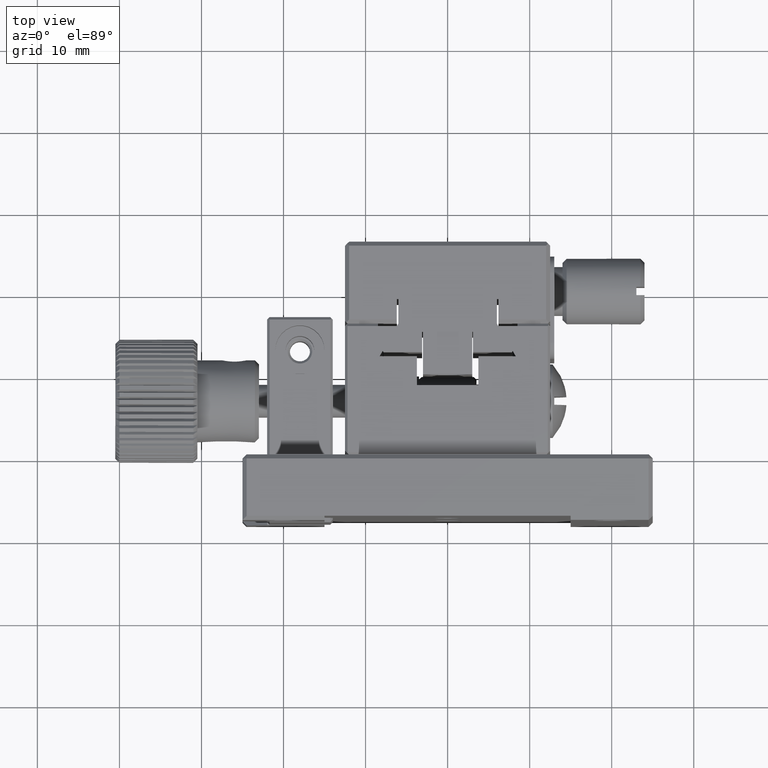
[diagram: clean part render]
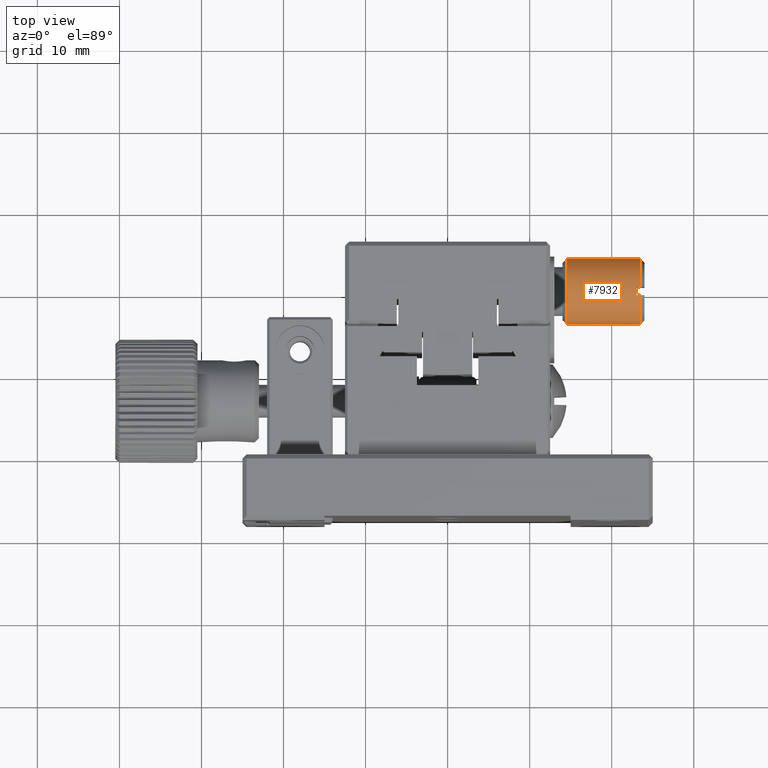
[diagram: same view with one face highlighted and labeled with its STEP entity id]
A machine part, top view. The second image highlights one B-rep face of the part: STEP entity #7932.
In plain terms, the highlighted cylindrical surface (bore or boss wall) has radius 4 mm, axis along (1, 0, 0).
Its self-contained STEP definition (entity closure, byte-faithful):
#32 = EDGE_CURVE ( 'NONE', #11619, #6648, #10686, .T. ) ;
#141 = CARTESIAN_POINT ( 'NONE',  ( 23.50000000000000000, 20.20000000000000284, 4.000000000000000000 ) ) ;
#361 = LINE ( 'NONE', #10353, #13487 ) ;
#403 = ORIENTED_EDGE ( 'NONE', *, *, #16201, .T. ) ;
#462 = VECTOR ( 'NONE', #5028, 1000.000000000000000 ) ;
#508 = VERTEX_POINT ( 'NONE', #15595 ) ;
#729 = CARTESIAN_POINT ( 'NONE',  ( 23.00000000000000000, 20.20000000000000284, 4.000000000000000000 ) ) ;
#951 = EDGE_LOOP ( 'NONE', ( #12097 ) ) ;
#1490 = CARTESIAN_POINT ( 'NONE',  ( 23.00000000000000000, 19.70000000000000284, 0.03137303340311350941 ) ) ;
#1673 = CARTESIAN_POINT ( 'NONE',  ( 23.00000000000000000, 19.70000000000000284, 0.03137303340311307920 ) ) ;
#1684 = VERTEX_POINT ( 'NONE', #1490 ) ;
#1717 = VERTEX_POINT ( 'NONE', #6416 ) ;
#2075 = DIRECTION ( 'NONE',  ( -1.000000000000000000, -0.000000000000000000, 0.000000000000000000 ) ) ;
#2216 = CARTESIAN_POINT ( 'NONE',  ( 23.00000000000000000, 20.20000000000000284, 4.000000000000000000 ) ) ;
#2278 = CARTESIAN_POINT ( 'NONE',  ( 23.00000000000000000, 19.70000000000000284, 7.968626966596890959 ) ) ;
#2728 = CARTESIAN_POINT ( 'NONE',  ( 24.00000000000000000, 20.20000000000000284, 4.000000000000000000 ) ) ;
#2807 = DIRECTION ( 'NONE',  ( 0.000000000000000000, 0.000000000000000000, -1.000000000000000000 ) ) ;
#2840 = CIRCLE ( 'NONE', #5707, 4.000000000000000000 ) ;
#3192 = CARTESIAN_POINT ( 'NONE',  ( 23.49999999999782929, 19.70000000000000284, 0.03137303340390137224 ) ) ;
#3449 = EDGE_CURVE ( 'NONE', #15450, #10379, #2840, .T. ) ;
#3526 = DIRECTION ( 'NONE',  ( 0.000000000000000000, 0.000000000000000000, -1.000000000000000000 ) ) ;
#4419 = ORIENTED_EDGE ( 'NONE', *, *, #15510, .T. ) ;
#4729 = DIRECTION ( 'NONE',  ( -1.000000000000000000, -0.000000000000000000, -0.000000000000000000 ) ) ;
#5028 = DIRECTION ( 'NONE',  ( 1.000000000000000000, 0.000000000000000000, 0.000000000000000000 ) ) ;
#5316 = CARTESIAN_POINT ( 'NONE',  ( 23.00000000000000000, 19.70000000000000284, 7.968626966596889183 ) ) ;
#5350 = DIRECTION ( 'NONE',  ( 1.000000000000000000, 0.000000000000000000, -0.000000000000000000 ) ) ;
#5707 = AXIS2_PLACEMENT_3D ( 'NONE', #729, #8332, #15515 ) ;
#5732 = ORIENTED_EDGE ( 'NONE', *, *, #13984, .T. ) ;
#5849 = ORIENTED_EDGE ( 'NONE', *, *, #13586, .F. ) ;
#6312 = EDGE_CURVE ( 'NONE', #1684, #7136, #14067, .T. ) ;
#6335 = DIRECTION ( 'NONE',  ( 1.000000000000000000, 0.000000000000000000, 0.000000000000000000 ) ) ;
#6416 = CARTESIAN_POINT ( 'NONE',  ( 23.49999999999782574, 20.70000000000000284, 7.968626966596101369 ) ) ;
#6648 = VERTEX_POINT ( 'NONE', #7552 ) ;
#7136 = VERTEX_POINT ( 'NONE', #3192 ) ;
#7552 = CARTESIAN_POINT ( 'NONE',  ( 23.00000000000000000, 20.70000000000000284, 0.03137303340311391880 ) ) ;
#7667 = EDGE_CURVE ( 'NONE', #508, #508, #8564, .T. ) ;
#7694 = VERTEX_POINT ( 'NONE', #8135 ) ;
#7932 = ADVANCED_FACE ( 'NONE', ( #10345, #13972 ), #10192, .T. ) ;
#8129 = CARTESIAN_POINT ( 'NONE',  ( 23.00000000000000000, 20.70000000000000284, 0.03137303340311389799 ) ) ;
#8135 = CARTESIAN_POINT ( 'NONE',  ( 23.49999999999704414, 19.70000000000000284, 7.968626966596889183 ) ) ;
#8292 = EDGE_LOOP ( 'NONE', ( #5849, #15125, #4419, #5732, #14260, #403, #15992, #11755 ) ) ;
#8332 = DIRECTION ( 'NONE',  ( 1.000000000000000000, 0.000000000000000000, 0.000000000000000000 ) ) ;
#8334 = LINE ( 'NONE', #2278, #13218 ) ;
#8474 = CIRCLE ( 'NONE', #15323, 4.000000000000000000 ) ;
#8564 = CIRCLE ( 'NONE', #14600, 4.000000000000000000 ) ;
#8810 = DIRECTION ( 'NONE',  ( -1.000000000000000000, -0.000000000000000000, -0.000000000000000000 ) ) ;
#8983 = DIRECTION ( 'NONE',  ( 0.000000000000000000, 0.000000000000000000, -1.000000000000000000 ) ) ;
#9377 = CARTESIAN_POINT ( 'NONE',  ( 14.50000000005502443, 20.20000000000000284, 4.000000000000000000 ) ) ;
#10127 = DIRECTION ( 'NONE',  ( -1.000000000000000000, -0.000000000000000000, -0.000000000000000000 ) ) ;
#10192 = CYLINDRICAL_SURFACE ( 'NONE', #14615, 4.000000000000000000 ) ;
#10345 = FACE_OUTER_BOUND ( 'NONE', #951, .T. ) ;
#10353 = CARTESIAN_POINT ( 'NONE',  ( 23.00000000000000000, 20.70000000000000284, 7.968626966596890959 ) ) ;
#10369 = VECTOR ( 'NONE', #2075, 1000.000000000000000 ) ;
#10379 = VERTEX_POINT ( 'NONE', #5316 ) ;
#10686 = LINE ( 'NONE', #8129, #10369 ) ;
#10834 = AXIS2_PLACEMENT_3D ( 'NONE', #13751, #10127, #8983 ) ;
#11619 = VERTEX_POINT ( 'NONE', #14213 ) ;
#11755 = ORIENTED_EDGE ( 'NONE', *, *, #32, .T. ) ;
#12097 = ORIENTED_EDGE ( 'NONE', *, *, #7667, .F. ) ;
#12690 = DIRECTION ( 'NONE',  ( 0.000000000000000000, 8.673617379884035472E-16, -1.000000000000000000 ) ) ;
#13218 = VECTOR ( 'NONE', #4729, 1000.000000000000000 ) ;
#13487 = VECTOR ( 'NONE', #5350, 1000.000000000000000 ) ;
#13586 = EDGE_CURVE ( 'NONE', #1684, #6648, #14001, .T. ) ;
#13751 = CARTESIAN_POINT ( 'NONE',  ( 23.50000000000000000, 20.20000000000000284, 4.000000000000000000 ) ) ;
#13972 = FACE_OUTER_BOUND ( 'NONE', #8292, .T. ) ;
#13984 = EDGE_CURVE ( 'NONE', #7694, #10379, #8334, .T. ) ;
#14001 = CIRCLE ( 'NONE', #14782, 4.000000000000000000 ) ;
#14067 = LINE ( 'NONE', #1673, #462 ) ;
#14213 = CARTESIAN_POINT ( 'NONE',  ( 23.49999999999704414, 20.70000000000000284, 0.03137303340311391880 ) ) ;
#14260 = ORIENTED_EDGE ( 'NONE', *, *, #3449, .F. ) ;
#14263 = CIRCLE ( 'NONE', #10834, 4.000000000000000000 ) ;
#14600 = AXIS2_PLACEMENT_3D ( 'NONE', #9377, #15626, #15784 ) ;
#14615 = AXIS2_PLACEMENT_3D ( 'NONE', #2728, #6335, #2807 ) ;
#14782 = AXIS2_PLACEMENT_3D ( 'NONE', #2216, #15025, #3526 ) ;
#15025 = DIRECTION ( 'NONE',  ( 1.000000000000000000, 0.000000000000000000, 0.000000000000000000 ) ) ;
#15125 = ORIENTED_EDGE ( 'NONE', *, *, #6312, .T. ) ;
#15323 = AXIS2_PLACEMENT_3D ( 'NONE', #141, #8810, #12690 ) ;
#15450 = VERTEX_POINT ( 'NONE', #16049 ) ;
#15508 = EDGE_CURVE ( 'NONE', #1717, #11619, #14263, .T. ) ;
#15510 = EDGE_CURVE ( 'NONE', #7136, #7694, #8474, .T. ) ;
#15515 = DIRECTION ( 'NONE',  ( 0.000000000000000000, 0.000000000000000000, -1.000000000000000000 ) ) ;
#15595 = CARTESIAN_POINT ( 'NONE',  ( 14.50000000005502443, 20.20000000000000284, 0.000000000000000000 ) ) ;
#15626 = DIRECTION ( 'NONE',  ( -1.000000000000000000, -0.000000000000000000, -0.000000000000000000 ) ) ;
#15784 = DIRECTION ( 'NONE',  ( 0.000000000000000000, 0.000000000000000000, -1.000000000000000000 ) ) ;
#15992 = ORIENTED_EDGE ( 'NONE', *, *, #15508, .T. ) ;
#16049 = CARTESIAN_POINT ( 'NONE',  ( 23.00000000000000000, 20.70000000000000284, 7.968626966596889183 ) ) ;
#16201 = EDGE_CURVE ( 'NONE', #15450, #1717, #361, .T. ) ;